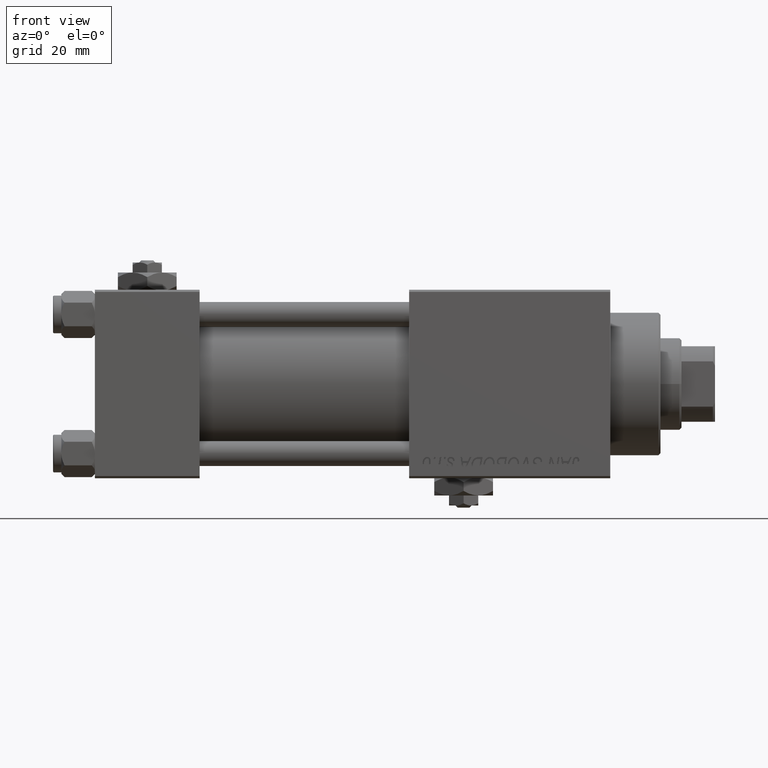
[diagram: clean part render]
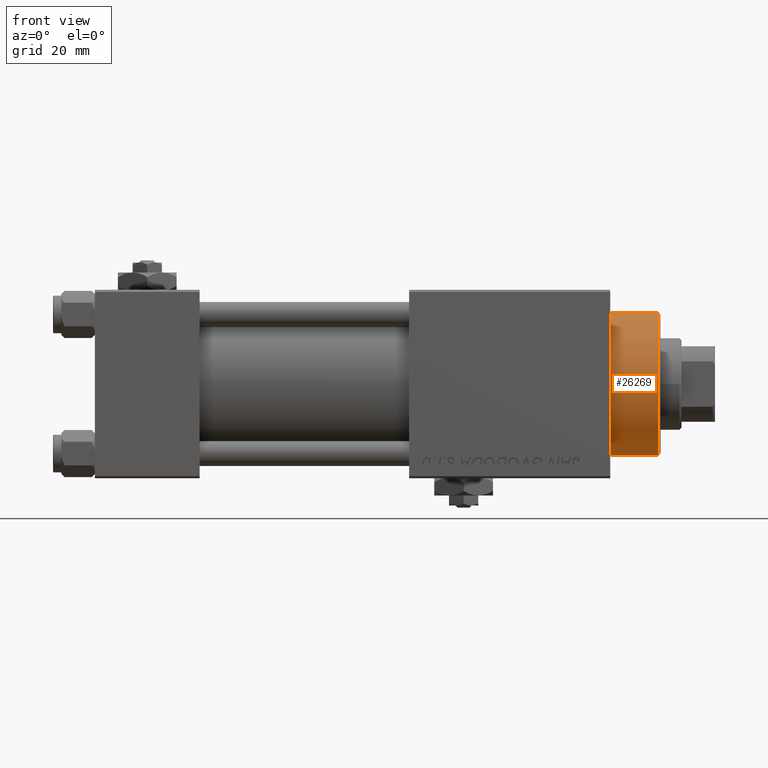
[diagram: same view with one face highlighted and labeled with its STEP entity id]
A machine part, front view. The second image highlights one B-rep face of the part: STEP entity #26269.
In plain terms, the highlighted cylindrical surface (partial cylindrical patch) has radius 17 mm, axis along (-1, -0, -0).
Its self-contained STEP definition (entity closure, byte-faithful):
#60 = CARTESIAN_POINT ( 'NONE',  ( 0.000000000000000000, 0.000000000000000000, 28.69999999999999929 ) ) ;
#271 = DIRECTION ( 'NONE',  ( -0.000000000000000000, -0.000000000000000000, -1.000000000000000000 ) ) ;
#1186 = CARTESIAN_POINT ( 'NONE',  ( -17.00000000000000000, 0.000000000000000000, 40.70000000000000284 ) ) ;
#2219 = LINE ( 'NONE', #1186, #4249 ) ;
#3262 = CIRCLE ( 'NONE', #25260, 17.00000000000000000 ) ;
#3854 = CARTESIAN_POINT ( 'NONE',  ( -17.00000000000000000, 0.000000000000000000, 28.69999999999999929 ) ) ;
#4249 = VECTOR ( 'NONE', #271, 1000.000000000000000 ) ;
#4432 = VERTEX_POINT ( 'NONE', #50572 ) ;
#5094 = CARTESIAN_POINT ( 'NONE',  ( 0.000000000000000000, 0.000000000000000000, 40.70000000000000284 ) ) ;
#5360 = DIRECTION ( 'NONE',  ( -0.000000000000000000, -0.000000000000000000, -1.000000000000000000 ) ) ;
#6552 = ORIENTED_EDGE ( 'NONE', *, *, #21774, .T. ) ;
#7551 = CARTESIAN_POINT ( 'NONE',  ( 0.000000000000000000, 0.000000000000000000, 40.19999999999999574 ) ) ;
#9533 = AXIS2_PLACEMENT_3D ( 'NONE', #5094, #5360, #9856 ) ;
#9856 = DIRECTION ( 'NONE',  ( -1.000000000000000000, 0.000000000000000000, 0.000000000000000000 ) ) ;
#11635 = DIRECTION ( 'NONE',  ( -0.000000000000000000, -0.000000000000000000, -1.000000000000000000 ) ) ;
#14047 = CARTESIAN_POINT ( 'NONE',  ( 17.00000000000000000, 2.081899558550500280E-15, 40.19999999999999574 ) ) ;
#14828 = EDGE_CURVE ( 'NONE', #34265, #18665, #3262, .T. ) ;
#16737 = DIRECTION ( 'NONE',  ( 0.000000000000000000, 0.000000000000000000, 1.000000000000000000 ) ) ;
#16825 = CARTESIAN_POINT ( 'NONE',  ( -17.00000000000000000, 0.000000000000000000, 40.19999999999999574 ) ) ;
#18665 = VERTEX_POINT ( 'NONE', #16825 ) ;
#19907 = FACE_OUTER_BOUND ( 'NONE', #51088, .T. ) ;
#20566 = ORIENTED_EDGE ( 'NONE', *, *, #14828, .T. ) ;
#20625 = LINE ( 'NONE', #28302, #51810 ) ;
#21774 = EDGE_CURVE ( 'NONE', #18665, #40196, #2219, .T. ) ;
#25260 = AXIS2_PLACEMENT_3D ( 'NONE', #7551, #31148, #47281 ) ;
#26269 = ADVANCED_FACE ( 'NONE', ( #19907 ), #36064, .T. ) ;
#27852 = AXIS2_PLACEMENT_3D ( 'NONE', #60, #16737, #52198 ) ;
#28178 = ORIENTED_EDGE ( 'NONE', *, *, #48237, .T. ) ;
#28302 = CARTESIAN_POINT ( 'NONE',  ( 17.00000000000000000, 2.081899558550500280E-15, 40.70000000000000284 ) ) ;
#28956 = EDGE_CURVE ( 'NONE', #34265, #4432, #20625, .T. ) ;
#31148 = DIRECTION ( 'NONE',  ( 0.000000000000000000, 0.000000000000000000, -1.000000000000000000 ) ) ;
#34265 = VERTEX_POINT ( 'NONE', #14047 ) ;
#36064 = CYLINDRICAL_SURFACE ( 'NONE', #9533, 17.00000000000000000 ) ;
#39682 = CIRCLE ( 'NONE', #27852, 17.00000000000000000 ) ;
#40196 = VERTEX_POINT ( 'NONE', #3854 ) ;
#41222 = ORIENTED_EDGE ( 'NONE', *, *, #28956, .F. ) ;
#47281 = DIRECTION ( 'NONE',  ( 1.000000000000000000, 0.000000000000000000, 0.000000000000000000 ) ) ;
#48237 = EDGE_CURVE ( 'NONE', #40196, #4432, #39682, .T. ) ;
#50572 = CARTESIAN_POINT ( 'NONE',  ( 17.00000000000000000, 2.081899558550500280E-15, 28.69999999999999929 ) ) ;
#51088 = EDGE_LOOP ( 'NONE', ( #41222, #20566, #6552, #28178 ) ) ;
#51810 = VECTOR ( 'NONE', #11635, 1000.000000000000000 ) ;
#52198 = DIRECTION ( 'NONE',  ( 1.000000000000000000, 0.000000000000000000, 0.000000000000000000 ) ) ;